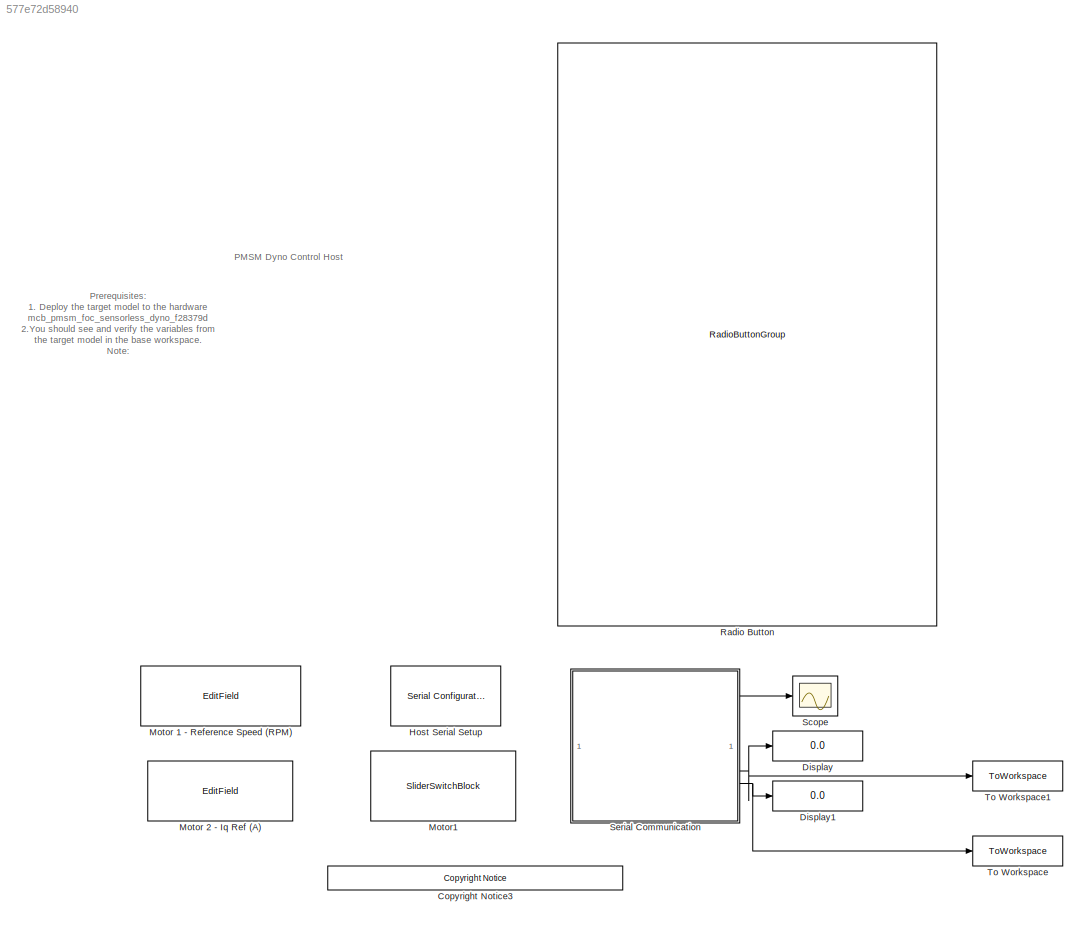
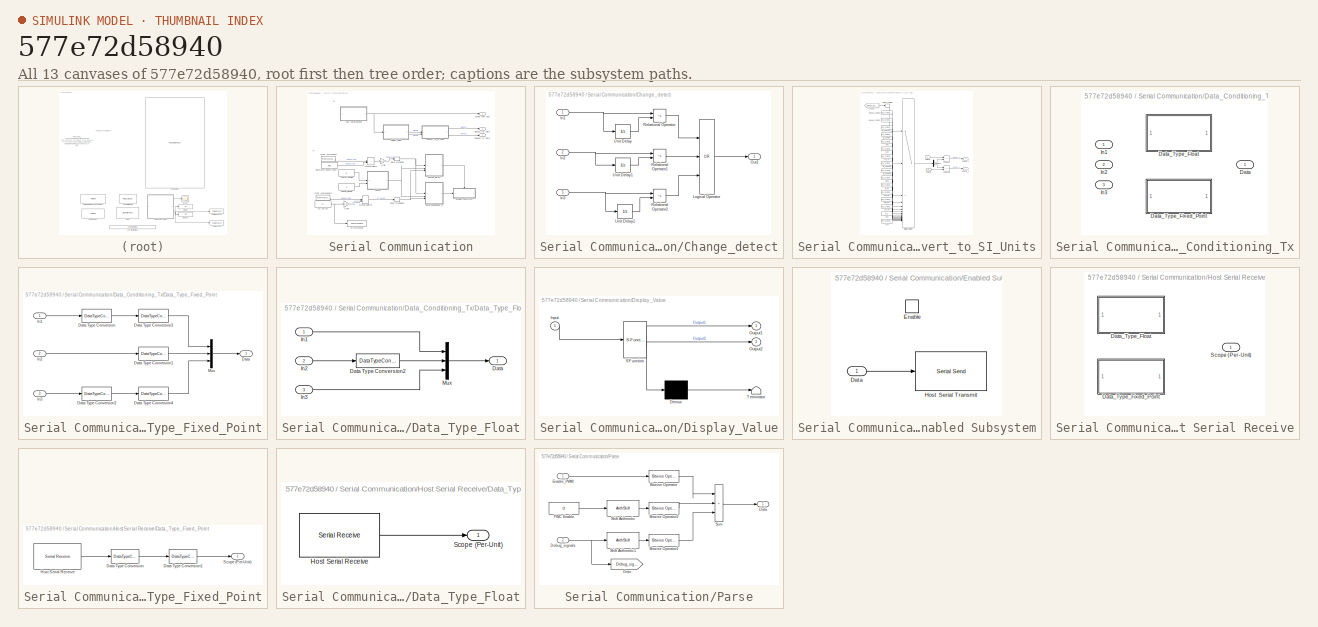
[diagram: thumbnail index - all 13 canvases of the model, root first then tree order]
MODEL slx_577e72d58940
KIND model
CONFIG AbsTol = auto
CONFIG EnableMultiTasking = on
CONFIG FixedStep = auto
CONFIG MaxStep = auto
CONFIG MinStep = auto
CONFIG RelTol = 1e-3
CONFIG SampleTimeConstraint = Unconstrained
CONFIG SolverName = FixedStepDiscrete
CONFIG StartTime = 0.0
CONFIG StopTime = inf
BLOCK [Reference] <copyright redacted>
  SourceBlock = demo_controls/<copyright redacted>
  SourceType = <copyright redacted>
BLOCK [Display] Display
  Decimation = 1
BLOCK [Display] Display1
  Decimation = 1
BLOCK [Reference] Host Serial Setup  REF=instrumentseriallib/Serial Configuration
  Priority = -99
  SourceBlock = instrumentseriallib/Serial Configuration
  SourceType = system.SerialConfiguration
BLOCK [EditField] Motor 1 - Reference Speed (RPM)
  Alignment = Center
  LabelPosition = Hide
  ShowInitialText = on
BLOCK [EditField] Motor 2 - Iq Ref (A)
  Alignment = Center
  LabelPosition = Hide
  ShowInitialText = on
BLOCK [SliderSwitchBlock] Motor1
  LabelPosition = Hide
BLOCK [RadioButtonGroup] Radio Button
  ButtonGroupName = Debug signals
  LabelPosition = Hide
  SelectedLabel = Mtr1: Speed ref & Speed feedback
BLOCK [Scope] Scope
  Floating = off
  NumInputPorts = 1
  ScopeSpecificationString = Simulink.scopes.TimeScopeBlockCfg('CurrentConfiguration', extmgr.ConfigurationSet(extmgr.Configuration('Core','General UI',true),extmgr.Configuration('Core','Source UI',true),extmgr.Configuration('Sources','WiredSimulink',true,'DataLoggingVariableName','Results_HW','DataLoggingSaveFormat','StructureWithTime','DataLogging',true),extmgr.Configuration('Visuals','Time Domain',true,'InputProcessing','F...<+1811ch>
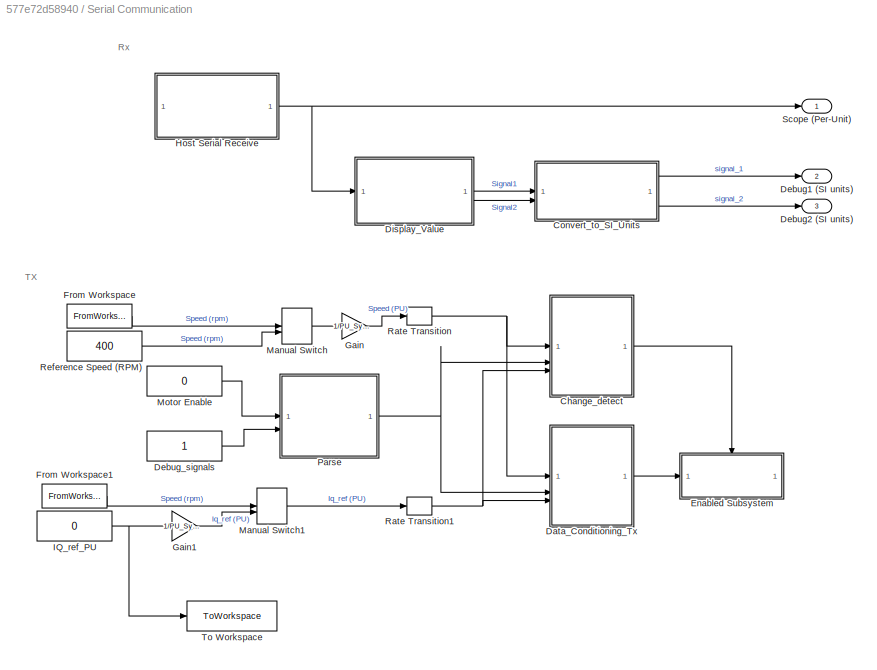
BLOCK [SubSystem] Serial Communication
BLOCK [SubSystem] Serial Communication/Change_detect
BLOCK [Inport] Serial Communication/Change_detect/In1
BLOCK [Inport] Serial Communication/Change_detect/In2
  Port = 2
BLOCK [Inport] Serial Communication/Change_detect/In3
  Port = 3
BLOCK [Logic] Serial Communication/Change_detect/Logical Operator
  AllPortsSameDT = off
  Inputs = 3
  Operator = OR
  OutDataTypeStr = boolean
BLOCK [Outport] Serial Communication/Change_detect/Out1
  VectorParamsAs1DForOutWhenUnconnected = off
BLOCK [RelationalOperator] Serial Communication/Change_detect/Relational Operator
  InputSameDT = off
  Operator = ~=
  OutDataTypeStr = boolean
BLOCK [RelationalOperator] Serial Communication/Change_detect/Relational Operator1
  InputSameDT = off
  Operator = ~=
  OutDataTypeStr = boolean
BLOCK [RelationalOperator] Serial Communication/Change_detect/Relational Operator2
  InputSameDT = off
  Operator = ~=
  OutDataTypeStr = boolean
BLOCK [UnitDelay] Serial Communication/Change_detect/Unit Delay
  HasFrameUpgradeWarning = on
  InitialCondition = 0.5
  SampleTime = -1
BLOCK [UnitDelay] Serial Communication/Change_detect/Unit Delay1
  HasFrameUpgradeWarning = on
  SampleTime = -1
BLOCK [UnitDelay] Serial Communication/Change_detect/Unit Delay2
  HasFrameUpgradeWarning = on
  InitialCondition = 0.5
  SampleTime = -1
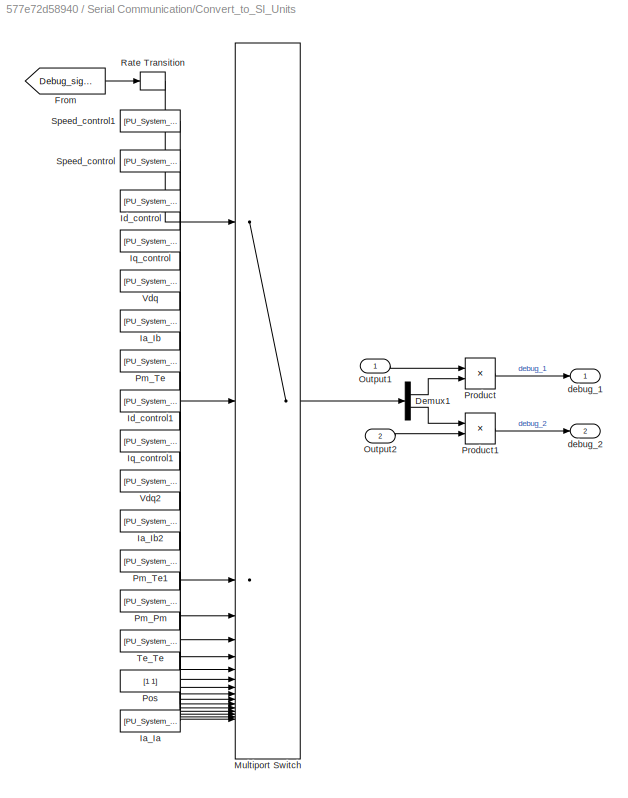
BLOCK [SubSystem] Serial Communication/Convert_to_SI_Units
BLOCK [Demux] Serial Communication/Convert_to_SI_Units/Demux1
  Outputs = 2
BLOCK [From] Serial Communication/Convert_to_SI_Units/From
  GotoTag = Debug_signals
  TagVisibility = global
BLOCK [Constant] Serial Communication/Convert_to_SI_Units/Ia_Ia
  OutDataTypeStr = single
  SampleTime = -1
  Value = [PU_System_motor1.I_base PU_System_motor2.I_base]
BLOCK [Constant] Serial Communication/Convert_to_SI_Units/Ia_Ib
  OutDataTypeStr = single
  SampleTime = -1
  Value = [PU_System_motor1.I_base PU_System_motor1.I_base]
BLOCK [Constant] Serial Communication/Convert_to_SI_Units/Ia_Ib2
  OutDataTypeStr = single
  SampleTime = -1
  Value = [PU_System_motor2.I_base PU_System_motor2.I_base]
BLOCK [Constant] Serial Communication/Convert_to_SI_Units/Id_control
  OutDataTypeStr = single
  SampleTime = -1
  Value = [PU_System_motor1.I_base PU_System_motor1.I_base]
BLOCK [Constant] Serial Communication/Convert_to_SI_Units/Id_control1
  OutDataTypeStr = single
  SampleTime = -1
  Value = [PU_System_motor2.I_base PU_System_motor2.I_base]
BLOCK [Constant] Serial Communication/Convert_to_SI_Units/Iq_control
  OutDataTypeStr = single
  SampleTime = -1
  Value = [PU_System_motor1.I_base PU_System_motor1.I_base]
BLOCK [Constant] Serial Communication/Convert_to_SI_Units/Iq_control1
  OutDataTypeStr = single
  SampleTime = -1
  Value = [PU_System_motor2.I_base PU_System_motor2.I_base]
BLOCK [MultiPortSwitch] Serial Communication/Convert_to_SI_Units/Multiport Switch
  DataPortOrder = Zero-based contiguous
  DiagnosticForDefault = Warning
  InputSameDT = off
  Inputs = 16
  OutDataTypeStr = single
  RndMeth = Simplest
  SaturateOnIntegerOverflow = off
  zeroidx = on
BLOCK [Inport] Serial Communication/Convert_to_SI_Units/Output1
BLOCK [Inport] Serial Communication/Convert_to_SI_Units/Output2
  Port = 2
BLOCK [Constant] Serial Communication/Convert_to_SI_Units/Pm_Pm
  OutDataTypeStr = single
  SampleTime = -1
  Value = [PU_System_motor1.P_base  PU_System_motor2.P_base]
BLOCK [Constant] Serial Communication/Convert_to_SI_Units/Pm_Te
  OutDataTypeStr = single
  SampleTime = -1
  Value = [PU_System_motor1.P_base  PU_System_motor1.T_base]
BLOCK [Constant] Serial Communication/Convert_to_SI_Units/Pm_Te1
  OutDataTypeStr = single
  SampleTime = -1
  Value = [PU_System_motor2.P_base  PU_System_motor2.T_base]
BLOCK [Constant] Serial Communication/Convert_to_SI_Units/Pos
  OutDataTypeStr = single
  SampleTime = -1
  Value = [1 1]
BLOCK [Product] Serial Communication/Convert_to_SI_Units/Product
BLOCK [Product] Serial Communication/Convert_to_SI_Units/Product1
BLOCK [RateTransition] Serial Communication/Convert_to_SI_Units/Rate Transition
  Deterministic = off
BLOCK [Constant] Serial Communication/Convert_to_SI_Units/Speed_control
  OutDataTypeStr = single
  SampleTime = -1
  Value = [PU_System_motor1.N_base PU_System_motor1.N_base]
BLOCK [Constant] Serial Communication/Convert_to_SI_Units/Speed_control1
  OutDataTypeStr = single
  SampleTime = -1
  Value = [PU_System_motor1.N_base PU_System_motor2.N_base]
BLOCK [Constant] Serial Communication/Convert_to_SI_Units/Te_Te
  OutDataTypeStr = single
  SampleTime = -1
  Value = [PU_System_motor1.T_base  PU_System_motor2.T_base]
BLOCK [Constant] Serial Communication/Convert_to_SI_Units/Vdq
  OutDataTypeStr = single
  SampleTime = -1
  Value = [PU_System_motor1.V_base PU_System_motor1.V_base]
BLOCK [Constant] Serial Communication/Convert_to_SI_Units/Vdq2
  OutDataTypeStr = single
  SampleTime = -1
  Value = [PU_System_motor2.V_base PU_System_motor2.V_base]
BLOCK [Outport] Serial Communication/Convert_to_SI_Units/debug_1
BLOCK [Outport] Serial Communication/Convert_to_SI_Units/debug_2
  Port = 2
BLOCK [SubSystem] Serial Communication/Data_Conditioning_Tx
  Variant = on
BLOCK [Outport] Serial Communication/Data_Conditioning_Tx/Data
BLOCK [SubSystem] Serial Communication/Data_Conditioning_Tx/Data_Type_Fixed_Point
  VariantControl = ~isequal(dataType, 'single')
BLOCK [Outport] Serial Communication/Data_Conditioning_Tx/Data_Type_Fixed_Point/Data
BLOCK [DataTypeConversion] Serial Communication/Data_Conditioning_Tx/Data_Type_Fixed_Point/Data Type Conversion
  OutDataTypeStr = fixdt(1,32,28)
  RndMeth = Simplest
  SaturateOnIntegerOverflow = off
BLOCK [DataTypeConversion] Serial Communication/Data_Conditioning_Tx/Data_Type_Fixed_Point/Data Type Conversion1
  OutDataTypeStr = uint32
  RndMeth = Simplest
  SaturateOnIntegerOverflow = off
BLOCK [DataTypeConversion] Serial Communication/Data_Conditioning_Tx/Data_Type_Fixed_Point/Data Type Conversion2
  OutDataTypeStr = fixdt(1,32,28)
  RndMeth = Simplest
  SaturateOnIntegerOverflow = off
BLOCK [DataTypeConversion] Serial Communication/Data_Conditioning_Tx/Data_Type_Fixed_Point/Data Type Conversion3
  ConvertRealWorld = Stored Integer (SI)
  OutDataTypeStr = uint32
  RndMeth = Simplest
  SaturateOnIntegerOverflow = off
BLOCK [DataTypeConversion] Serial Communication/Data_Conditioning_Tx/Data_Type_Fixed_Point/Data Type Conversion4
  ConvertRealWorld = Stored Integer (SI)
  OutDataTypeStr = uint32
  RndMeth = Simplest
  SaturateOnIntegerOverflow = off
BLOCK [Inport] Serial Communication/Data_Conditioning_Tx/Data_Type_Fixed_Point/In1
BLOCK [Inport] Serial Communication/Data_Conditioning_Tx/Data_Type_Fixed_Point/In2
  Port = 2
BLOCK [Inport] Serial Communication/Data_Conditioning_Tx/Data_Type_Fixed_Point/In3
  Port = 3
BLOCK [Mux] Serial Communication/Data_Conditioning_Tx/Data_Type_Fixed_Point/Mux
  DisplayOption = bar
  Inputs = 3
BLOCK [SubSystem] Serial Communication/Data_Conditioning_Tx/Data_Type_Float
  VariantControl = isequal(dataType, 'single')
BLOCK [Outport] Serial Communication/Data_Conditioning_Tx/Data_Type_Float/Data
BLOCK [DataTypeConversion] Serial Communication/Data_Conditioning_Tx/Data_Type_Float/Data Type Conversion2
  OutDataTypeStr = single
  RndMeth = Simplest
  SaturateOnIntegerOverflow = off
BLOCK [Inport] Serial Communication/Data_Conditioning_Tx/Data_Type_Float/In1
BLOCK [Inport] Serial Communication/Data_Conditioning_Tx/Data_Type_Float/In2
  Port = 2
BLOCK [Inport] Serial Communication/Data_Conditioning_Tx/Data_Type_Float/In3
  Port = 3
BLOCK [Mux] Serial Communication/Data_Conditioning_Tx/Data_Type_Float/Mux
  DisplayOption = bar
  Inputs = 3
BLOCK [Inport] Serial Communication/Data_Conditioning_Tx/In1
BLOCK [Inport] Serial Communication/Data_Conditioning_Tx/In2
  Port = 2
BLOCK [Inport] Serial Communication/Data_Conditioning_Tx/In3
  Port = 3
BLOCK [Outport] Serial Communication/Debug1 (SI units)
  Port = 2
BLOCK [Outport] Serial Communication/Debug2 (SI units)
  Port = 3
BLOCK [Constant] Serial Communication/Debug_signals
  OutDataTypeStr = uint16
  SampleTime = 0.03
BLOCK [SubSystem] Serial Communication/Display_Value
  ErrorFcn = Stateflow.Translate.translate
  PermitHierarchicalResolution = ExplicitOnly
  SFBlockType = MATLAB Function
  TreatAsAtomicUnit = on
BLOCK [Demux] Serial Communication/Display_Value/ Demux 
  Outputs = 1
BLOCK [S-Function] Serial Communication/Display_Value/ SFunction 
  EnableBusSupport = on
  FunctionName = sf_sfun
  PortCounts = [1 3]
  SFcnIsStateOwnerBlock = off
  SFunctionDeploymentMode = off
  Tag = Stateflow S-Function 1
BLOCK [Terminator] Serial Communication/Display_Value/ Terminator 
BLOCK [Inport] Serial Communication/Display_Value/Input
BLOCK [Outport] Serial Communication/Display_Value/Output1
BLOCK [Outport] Serial Communication/Display_Value/Output2
  Port = 2
BLOCK [SubSystem] Serial Communication/Enabled Subsystem
  TreatAsAtomicUnit = on
BLOCK [Inport] Serial Communication/Enabled Subsystem/Data
BLOCK [EnablePort] Serial Communication/Enabled Subsystem/Enable
BLOCK [Reference] Serial Communication/Enabled Subsystem/Host Serial Transmit  REF=instrumentseriallib/Serial Send
  SourceBlock = instrumentseriallib/Serial Send
  SourceType = system.SerialSend
BLOCK [FromWorkspace] Serial Communication/From Workspace
  Commented = on
  SampleTime = 0.03
  VariableName = speed_ref
BLOCK [FromWorkspace] Serial Communication/From Workspace1
  Commented = on
  SampleTime = 0.03
  VariableName = mtr2_iqref_PU
BLOCK [Gain] Serial Communication/Gain
  Gain = 1/PU_System_motor1.N_base
  OutDataTypeStr = Inherit: Same as input
  RndMeth = Simplest
BLOCK [Gain] Serial Communication/Gain1
  Gain = 1/PU_System_motor2.I_base
  OutDataTypeStr = Inherit: Same as input
  RndMeth = Simplest
BLOCK [SubSystem] Serial Communication/Host Serial Receive
  Variant = on
BLOCK [SubSystem] Serial Communication/Host Serial Receive/Data_Type_Fixed_Point
  VariantControl = ~isequal(dataType, 'single')
BLOCK [DataTypeConversion] Serial Communication/Host Serial Receive/Data_Type_Fixed_Point/Data Type Conversion
  ConvertRealWorld = Stored Integer (SI)
  OutDataTypeStr = fixdt(1,32,28)
  RndMeth = Simplest
  SaturateOnIntegerOverflow = off
BLOCK [DataTypeConversion] Serial Communication/Host Serial Receive/Data_Type_Fixed_Point/Data Type Conversion1
  OutDataTypeStr = single
  RndMeth = Simplest
  SaturateOnIntegerOverflow = off
BLOCK [Reference] Serial Communication/Host Serial Receive/Data_Type_Fixed_Point/Host Serial Receive  REF=instrumentseriallib/Serial Receive
  SourceBlock = instrumentseriallib/Serial Receive
  SourceType = system.SerialReceive
BLOCK [Outport] Serial Communication/Host Serial Receive/Data_Type_Fixed_Point/Scope (Per-Unit)
BLOCK [SubSystem] Serial Communication/Host Serial Receive/Data_Type_Float
  VariantControl = isequal(dataType, 'single')
BLOCK [Reference] Serial Communication/Host Serial Receive/Data_Type_Float/Host Serial Receive  REF=instrumentseriallib/Serial Receive
  SourceBlock = instrumentseriallib/Serial Receive
  SourceType = system.SerialReceive
BLOCK [Outport] Serial Communication/Host Serial Receive/Data_Type_Float/Scope (Per-Unit)
BLOCK [Outport] Serial Communication/Host Serial Receive/Scope (Per-Unit)
BLOCK [Constant] Serial Communication/IQ_ref_PU
  OutDataTypeStr = single
  SampleTime = 0.03
  Value = 0
  VectorParams1D = off
BLOCK [ManualSwitch] Serial Communication/Manual Switch
  CurrentSetting = 0
BLOCK [ManualSwitch] Serial Communication/Manual Switch1
  CurrentSetting = 0
BLOCK [Constant] Serial Communication/Motor Enable
  OutDataTypeStr = uint16
  SampleTime = 0.03
  Value = 0
  VectorParams1D = off
BLOCK [SubSystem] Serial Communication/Parse
BLOCK [Reference] Serial Communication/Parse/Bitwise Operator  REF=simulink/Logic and Bit
Operations/Bitwise
Operator
  SourceBlock = simulink/Logic and Bit\nOperations/Bitwise\nOperator
  SourceType = Bitwise Operator
BLOCK [Reference] Serial Communication/Parse/Bitwise Operator1  REF=simulink/Logic and Bit
Operations/Bitwise
Operator
  SourceBlock = simulink/Logic and Bit\nOperations/Bitwise\nOperator
  SourceType = Bitwise Operator
BLOCK [Reference] Serial Communication/Parse/Bitwise Operator2  REF=simulink/Logic and Bit
Operations/Bitwise
Operator
  SourceBlock = simulink/Logic and Bit\nOperations/Bitwise\nOperator
  SourceType = Bitwise Operator
BLOCK [Outport] Serial Communication/Parse/Data
BLOCK [Inport] Serial Communication/Parse/Debug_signals
  Port = 2
BLOCK [Inport] Serial Communication/Parse/Enable_PWM
BLOCK [Constant] Serial Communication/Parse/FWC Enable
  OutDataTypeStr = uint16
  SampleTime = 0.03
  Value = 0
  VectorParams1D = off
BLOCK [Goto] Serial Communication/Parse/Goto
  GotoTag = Debug_signals
  TagVisibility = global
BLOCK [ArithShift] Serial Communication/Parse/Shift Arithmetic
  BitShiftNumber = -1
  InputPortMap = u0
BLOCK [ArithShift] Serial Communication/Parse/Shift Arithmetic1
  BitShiftNumber = -4
  InputPortMap = u0
BLOCK [Sum] Serial Communication/Parse/Sum
  IconShape = rectangular
  Inputs = |+++
BLOCK [RateTransition] Serial Communication/Rate Transition
  OutPortSampleTime = 0.03
BLOCK [RateTransition] Serial Communication/Rate Transition1
  OutPortSampleTime = 0.03
BLOCK [Constant] Serial Communication/Reference Speed (RPM)
  OutDataTypeStr = single
  SampleTime = 0.03
  Value = 400
  VectorParams1D = off
BLOCK [Outport] Serial Communication/Scope (Per-Unit)
BLOCK [ToWorkspace] Serial Communication/To Workspace
  FixptAsFi = on
  MaxDataPoints = inf
  SampleTime = -1
  SaveFormat = Structure With Time
  VariableName = Iq_ref
BLOCK [ToWorkspace] To Workspace
  FixptAsFi = on
  MaxDataPoints = inf
  SampleTime = -1
  SaveFormat = Structure With Time
  VariableName = Mtr1_Speed_feedback
BLOCK [ToWorkspace] To Workspace1
  FixptAsFi = on
  MaxDataPoints = inf
  SampleTime = -1
  SaveFormat = Structure With Time
  VariableName = Mtr1_Speed_reference
ANNOTATION (root): PMSM Dyno Control Host
ANNOTATION (root): Prerequisites: 1. Deploy the target model to the hardware mcb_pmsm_foc_sensorless_dyno_f28379d 2.You should see and verify the variables from the target model in the base workspace. Note: 1. Select the port in Host Serial Setup , Host Serial Receive and Host Serial Transmit 2. Use the 'Motor1' switch to Start and Stop the motor. 3. Input speed request for Motor 1 using 'Motor 1- Reference Speed(RP...<+314ch>
ANNOTATION Serial Communication: Rx
ANNOTATION Serial Communication: TX
NET Serial Communication/Change_detect/In1:1 -> Serial Communication/Change_detect/Relational Operator:1, Serial Communication/Change_detect/Unit Delay:1
NET Serial Communication/Change_detect/In2:1 -> Serial Communication/Change_detect/Relational Operator1:1, Serial Communication/Change_detect/Unit Delay1:1
NET Serial Communication/Change_detect/In3:1 -> Serial Communication/Change_detect/Relational Operator2:1, Serial Communication/Change_detect/Unit Delay2:1
LINE Serial Communication/Change_detect/Logical Operator:1 -> Serial Communication/Change_detect/Out1:1
LINE Serial Communication/Change_detect/Relational Operator1:1 -> Serial Communication/Change_detect/Logical Operator:2
LINE Serial Communication/Change_detect/Relational Operator2:1 -> Serial Communication/Change_detect/Logical Operator:3
LINE Serial Communication/Change_detect/Relational Operator:1 -> Serial Communication/Change_detect/Logical Operator:1
LINE Serial Communication/Change_detect/Unit Delay1:1 -> Serial Communication/Change_detect/Relational Operator1:2
LINE Serial Communication/Change_detect/Unit Delay2:1 -> Serial Communication/Change_detect/Relational Operator2:2
LINE Serial Communication/Change_detect/Unit Delay:1 -> Serial Communication/Change_detect/Relational Operator:2
LINE Serial Communication/Change_detect:1 -> Serial Communication/Enabled Subsystem:enable
LINE Serial Communication/Convert_to_SI_Units/Demux1:1 -> Serial Communication/Convert_to_SI_Units/Product:2
LINE Serial Communication/Convert_to_SI_Units/Demux1:2 -> Serial Communication/Convert_to_SI_Units/Product1:1
LINE Serial Communication/Convert_to_SI_Units/From:1 -> Serial Communication/Convert_to_SI_Units/Rate Transition:1
LINE Serial Communication/Convert_to_SI_Units/Ia_Ia:1 -> Serial Communication/Convert_to_SI_Units/Multiport Switch:17
LINE Serial Communication/Convert_to_SI_Units/Ia_Ib2:1 -> Serial Communication/Convert_to_SI_Units/Multiport Switch:12
LINE Serial Communication/Convert_to_SI_Units/Ia_Ib:1 -> Serial Communication/Convert_to_SI_Units/Multiport Switch:7
LINE Serial Communication/Convert_to_SI_Units/Id_control1:1 -> Serial Communication/Convert_to_SI_Units/Multiport Switch:9
LINE Serial Communication/Convert_to_SI_Units/Id_control:1 -> Serial Communication/Convert_to_SI_Units/Multiport Switch:4
LINE Serial Communication/Convert_to_SI_Units/Iq_control1:1 -> Serial Communication/Convert_to_SI_Units/Multiport Switch:10
LINE Serial Communication/Convert_to_SI_Units/Iq_control:1 -> Serial Communication/Convert_to_SI_Units/Multiport Switch:5
LINE Serial Communication/Convert_to_SI_Units/Multiport Switch:1 -> Serial Communication/Convert_to_SI_Units/Demux1:1
LINE Serial Communication/Convert_to_SI_Units/Output1:1 -> Serial Communication/Convert_to_SI_Units/Product:1
LINE Serial Communication/Convert_to_SI_Units/Output2:1 -> Serial Communication/Convert_to_SI_Units/Product1:2
LINE Serial Communication/Convert_to_SI_Units/Pm_Pm:1 -> Serial Communication/Convert_to_SI_Units/Multiport Switch:14
LINE Serial Communication/Convert_to_SI_Units/Pm_Te1:1 -> Serial Communication/Convert_to_SI_Units/Multiport Switch:13
LINE Serial Communication/Convert_to_SI_Units/Pm_Te:1 -> Serial Communication/Convert_to_SI_Units/Multiport Switch:8
LINE Serial Communication/Convert_to_SI_Units/Pos:1 -> Serial Communication/Convert_to_SI_Units/Multiport Switch:16
LINE Serial Communication/Convert_to_SI_Units/Product1:1 -> Serial Communication/Convert_to_SI_Units/debug_2:1
LINE Serial Communication/Convert_to_SI_Units/Product:1 -> Serial Communication/Convert_to_SI_Units/debug_1:1
LINE Serial Communication/Convert_to_SI_Units/Rate Transition:1 -> Serial Communication/Convert_to_SI_Units/Multiport Switch:1
LINE Serial Communication/Convert_to_SI_Units/Speed_control1:1 -> Serial Communication/Convert_to_SI_Units/Multiport Switch:2
LINE Serial Communication/Convert_to_SI_Units/Speed_control:1 -> Serial Communication/Convert_to_SI_Units/Multiport Switch:3
LINE Serial Communication/Convert_to_SI_Units/Te_Te:1 -> Serial Communication/Convert_to_SI_Units/Multiport Switch:15
LINE Serial Communication/Convert_to_SI_Units/Vdq2:1 -> Serial Communication/Convert_to_SI_Units/Multiport Switch:11
LINE Serial Communication/Convert_to_SI_Units/Vdq:1 -> Serial Communication/Convert_to_SI_Units/Multiport Switch:6
LINE Serial Communication/Convert_to_SI_Units:1 -> Serial Communication/Debug1 (SI units):1
LINE Serial Communication/Convert_to_SI_Units:2 -> Serial Communication/Debug2 (SI units):1
LINE Serial Communication/Data_Conditioning_Tx/Data_Type_Fixed_Point/Data Type Conversion1:1 -> Serial Communication/Data_Conditioning_Tx/Data_Type_Fixed_Point/Mux:2
LINE Serial Communication/Data_Conditioning_Tx/Data_Type_Fixed_Point/Data Type Conversion2:1 -> Serial Communication/Data_Conditioning_Tx/Data_Type_Fixed_Point/Data Type Conversion4:1
LINE Serial Communication/Data_Conditioning_Tx/Data_Type_Fixed_Point/Data Type Conversion3:1 -> Serial Communication/Data_Conditioning_Tx/Data_Type_Fixed_Point/Mux:1
LINE Serial Communication/Data_Conditioning_Tx/Data_Type_Fixed_Point/Data Type Conversion4:1 -> Serial Communication/Data_Conditioning_Tx/Data_Type_Fixed_Point/Mux:3
LINE Serial Communication/Data_Conditioning_Tx/Data_Type_Fixed_Point/Data Type Conversion:1 -> Serial Communication/Data_Conditioning_Tx/Data_Type_Fixed_Point/Data Type Conversion3:1
LINE Serial Communication/Data_Conditioning_Tx/Data_Type_Fixed_Point/In1:1 -> Serial Communication/Data_Conditioning_Tx/Data_Type_Fixed_Point/Data Type Conversion:1
LINE Serial Communication/Data_Conditioning_Tx/Data_Type_Fixed_Point/In2:1 -> Serial Communication/Data_Conditioning_Tx/Data_Type_Fixed_Point/Data Type Conversion1:1
LINE Serial Communication/Data_Conditioning_Tx/Data_Type_Fixed_Point/In3:1 -> Serial Communication/Data_Conditioning_Tx/Data_Type_Fixed_Point/Data Type Conversion2:1
LINE Serial Communication/Data_Conditioning_Tx/Data_Type_Fixed_Point/Mux:1 -> Serial Communication/Data_Conditioning_Tx/Data_Type_Fixed_Point/Data:1
LINE Serial Communication/Data_Conditioning_Tx/Data_Type_Float/Data Type Conversion2:1 -> Serial Communication/Data_Conditioning_Tx/Data_Type_Float/Mux:2
LINE Serial Communication/Data_Conditioning_Tx/Data_Type_Float/In1:1 -> Serial Communication/Data_Conditioning_Tx/Data_Type_Float/Mux:1
LINE Serial Communication/Data_Conditioning_Tx/Data_Type_Float/In2:1 -> Serial Communication/Data_Conditioning_Tx/Data_Type_Float/Data Type Conversion2:1
LINE Serial Communication/Data_Conditioning_Tx/Data_Type_Float/In3:1 -> Serial Communication/Data_Conditioning_Tx/Data_Type_Float/Mux:3
LINE Serial Communication/Data_Conditioning_Tx/Data_Type_Float/Mux:1 -> Serial Communication/Data_Conditioning_Tx/Data_Type_Float/Data:1
LINE Serial Communication/Data_Conditioning_Tx:1 -> Serial Communication/Enabled Subsystem:1
LINE Serial Communication/Debug_signals:1 -> Serial Communication/Parse:2
LINE Serial Communication/Display_Value:1 -> Serial Communication/Convert_to_SI_Units:1
LINE Serial Communication/Display_Value:2 -> Serial Communication/Convert_to_SI_Units:2
LINE Serial Communication/Enabled Subsystem/Data:1 -> Serial Communication/Enabled Subsystem/Host Serial Transmit:1
LINE Serial Communication/From Workspace1:1 -> Serial Communication/Manual Switch1:1
LINE Serial Communication/From Workspace:1 -> Serial Communication/Manual Switch:1
LINE Serial Communication/Gain1:1 -> Serial Communication/Manual Switch1:2
LINE Serial Communication/Gain:1 -> Serial Communication/Rate Transition:1
LINE Serial Communication/Host Serial Receive/Data_Type_Fixed_Point/Data Type Conversion1:1 -> Serial Communication/Host Serial Receive/Data_Type_Fixed_Point/Scope (Per-Unit):1
LINE Serial Communication/Host Serial Receive/Data_Type_Fixed_Point/Data Type Conversion:1 -> Serial Communication/Host Serial Receive/Data_Type_Fixed_Point/Data Type Conversion1:1
LINE Serial Communication/Host Serial Receive/Data_Type_Fixed_Point/Host Serial Receive:1 -> Serial Communication/Host Serial Receive/Data_Type_Fixed_Point/Data Type Conversion:1
LINE Serial Communication/Host Serial Receive/Data_Type_Float/Host Serial Receive:1 -> Serial Communication/Host Serial Receive/Data_Type_Float/Scope (Per-Unit):1
NET Serial Communication/Host Serial Receive:1 -> Serial Communication/Display_Value:1, Serial Communication/Scope (Per-Unit):1
NET Serial Communication/IQ_ref_PU:1 -> Serial Communication/Gain1:1, Serial Communication/To Workspace:1
LINE Serial Communication/Manual Switch1:1 -> Serial Communication/Rate Transition1:1
LINE Serial Communication/Manual Switch:1 -> Serial Communication/Gain:1
LINE Serial Communication/Motor Enable:1 -> Serial Communication/Parse:1
LINE Serial Communication/Parse/Bitwise Operator1:1 -> Serial Communication/Parse/Sum:3
LINE Serial Communication/Parse/Bitwise Operator2:1 -> Serial Communication/Parse/Sum:2
LINE Serial Communication/Parse/Bitwise Operator:1 -> Serial Communication/Parse/Sum:1
NET Serial Communication/Parse/Debug_signals:1 -> Serial Communication/Parse/Goto:1, Serial Communication/Parse/Shift Arithmetic1:1
LINE Serial Communication/Parse/Enable_PWM:1 -> Serial Communication/Parse/Bitwise Operator:1
LINE Serial Communication/Parse/FWC Enable:1 -> Serial Communication/Parse/Shift Arithmetic:1
LINE Serial Communication/Parse/Shift Arithmetic1:1 -> Serial Communication/Parse/Bitwise Operator1:1
LINE Serial Communication/Parse/Shift Arithmetic:1 -> Serial Communication/Parse/Bitwise Operator2:1
LINE Serial Communication/Parse/Sum:1 -> Serial Communication/Parse/Data:1
NET Serial Communication/Parse:1 -> Serial Communication/Change_detect:2, Serial Communication/Data_Conditioning_Tx:2
NET Serial Communication/Rate Transition1:1 -> Serial Communication/Change_detect:3, Serial Communication/Data_Conditioning_Tx:3
NET Serial Communication/Rate Transition:1 -> Serial Communication/Change_detect:1, Serial Communication/Data_Conditioning_Tx:1
LINE Serial Communication/Reference Speed (RPM):1 -> Serial Communication/Manual Switch:2
LINE Serial Communication:1 -> Scope:1
NET Serial Communication:2 -> Display:1, To Workspace1:1
NET Serial Communication:3 -> Display1:1, To Workspace:1
note: NET lines group one-source signal fan-out (src -> all destinations, sorted); 1:1 wires keep LINE
CHART Serial Communication/Display_Value states=1 transitions=1
  STATE_LABEL 'eML_blk_kernel()'
  STATE_LABEL 'SCRIPT:\nfunction [Output1, Output2] = unBuf (Input)\n%% ************************************************************************\n% Unbuffer function\n% Outputs first received serial data from buffer for both signals\n\n% <copyright redacted>\n\nselSignal= Input(:, 1);\nOutput1 = selSignal(1,1);\nselSignal = Input(:, 2);\nOutput2 = selSignal(1,1);\nend'
CHART  states=0 transitions=0
